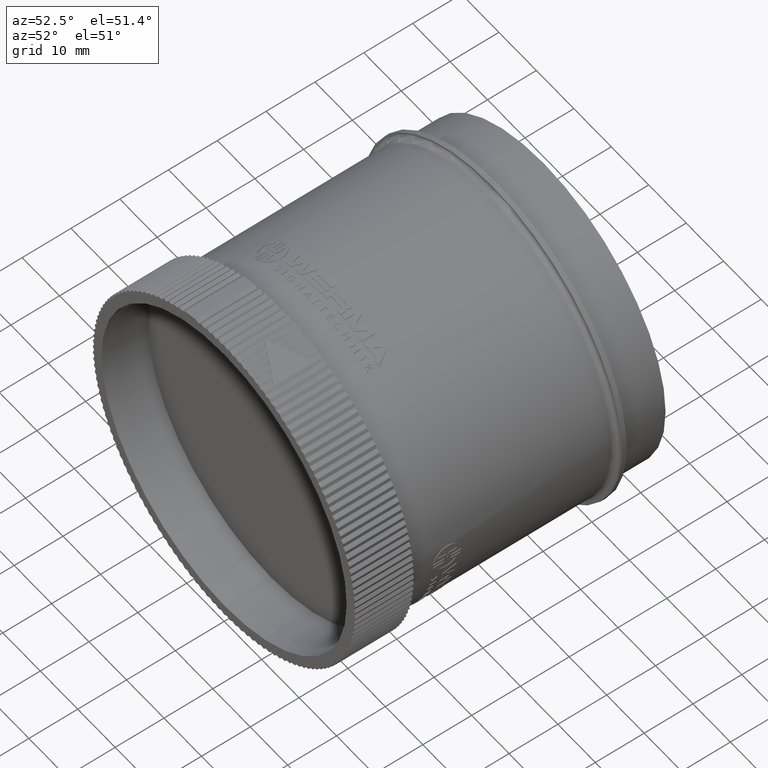
[diagram: clean part render]
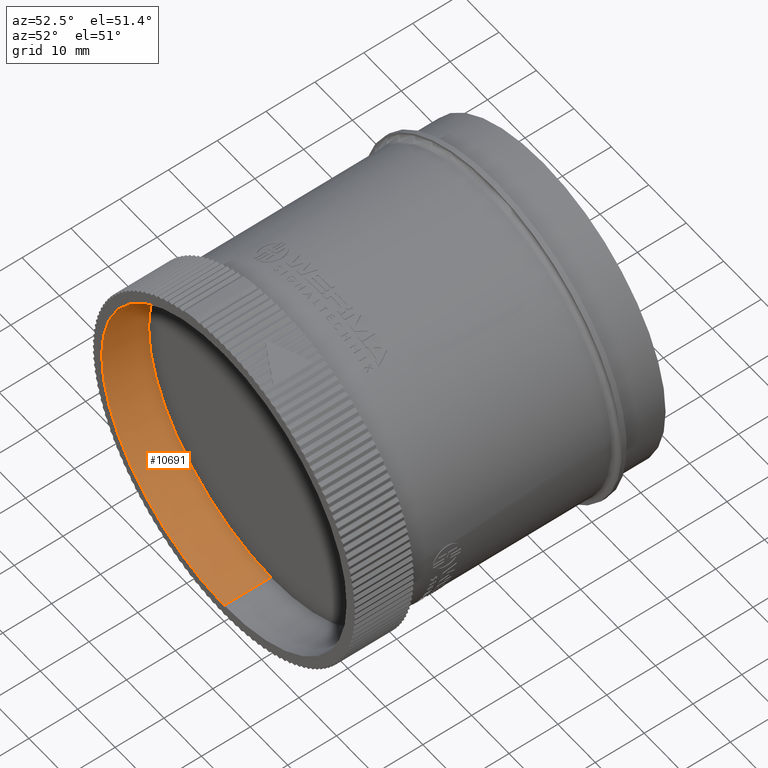
[diagram: same view with one face highlighted and labeled with its STEP entity id]
A machine part, auxiliary view. The second image highlights one B-rep face of the part: STEP entity #10691.
In plain terms, the highlighted cylindrical surface (partial cylindrical patch) has radius 32.7 mm, axis along (0, -1, 0).
Its self-contained STEP definition (entity closure, byte-faithful):
#894 = EDGE_CURVE ( 'NONE', #8345, #4081, #29077, .T. ) ;
#1953 = DIRECTION ( 'NONE',  ( 0.0000000000000000000, -1.000000000000000000, 0.0000000000000000000 ) ) ;
#2765 = DIRECTION ( 'NONE',  ( -0.0000000000000000000, 1.000000000000000000, -0.0000000000000000000 ) ) ;
#2831 = DIRECTION ( 'NONE',  ( 0.0000000000000000000, 0.0000000000000000000, -1.000000000000000000 ) ) ;
#3206 = CIRCLE ( 'NONE', #4306, 1.287401574803150000 ) ;
#4081 = VERTEX_POINT ( 'NONE', #6145 ) ;
#4306 = AXIS2_PLACEMENT_3D ( 'NONE', #26001, #2765, #29931 ) ;
#5300 = VERTEX_POINT ( 'NONE', #9667 ) ;
#6145 = CARTESIAN_POINT ( 'NONE',  ( 1.576612217799939400E-016, 0.0000000000000000000, 1.287401574803150000 ) ) ;
#6710 = DIRECTION ( 'NONE',  ( 0.0000000000000000000, -1.000000000000000000, 0.0000000000000000000 ) ) ;
#7993 = EDGE_CURVE ( 'NONE', #8917, #5300, #50320, .T. ) ;
#8186 = CYLINDRICAL_SURFACE ( 'NONE', #34273, 1.287401574803150000 ) ;
#8345 = VERTEX_POINT ( 'NONE', #44946 ) ;
#8917 = VERTEX_POINT ( 'NONE', #36726 ) ;
#9667 = CARTESIAN_POINT ( 'NONE',  ( 0.0000000000000000000, 0.0000000000000000000, -1.287401574803150000 ) ) ;
#10180 = VECTOR ( 'NONE', #25802, 39.37007874015748100 ) ;
#10269 = EDGE_CURVE ( 'NONE', #8345, #8917, #34396, .T. ) ;
#10691 = ADVANCED_FACE ( 'NONE', ( #19728 ), #8186, .F. ) ;
#11738 = AXIS2_PLACEMENT_3D ( 'NONE', #23215, #50376, #27160 ) ;
#16991 = ORIENTED_EDGE ( 'NONE', *, *, #7993, .F. ) ;
#19204 = EDGE_LOOP ( 'NONE', ( #49373, #45071, #42035, #16991 ) ) ;
#19728 = FACE_OUTER_BOUND ( 'NONE', #19204, .T. ) ;
#21286 = CARTESIAN_POINT ( 'NONE',  ( 1.576612217799939400E-016, 0.2364173228346457800, 1.287401574803150000 ) ) ;
#21874 = CARTESIAN_POINT ( 'NONE',  ( 0.0000000000000000000, 0.2364173228346457800, -1.287401574803150000 ) ) ;
#23215 = CARTESIAN_POINT ( 'NONE',  ( 0.0000000000000000000, 0.3779527559055118600, 0.0000000000000000000 ) ) ;
#25802 = DIRECTION ( 'NONE',  ( 0.0000000000000000000, -1.000000000000000000, 0.0000000000000000000 ) ) ;
#26001 = CARTESIAN_POINT ( 'NONE',  ( 0.0000000000000000000, 0.0000000000000000000, 0.0000000000000000000 ) ) ;
#27160 = DIRECTION ( 'NONE',  ( 0.0000000000000000000, 0.0000000000000000000, -1.000000000000000000 ) ) ;
#29077 = LINE ( 'NONE', #21286, #38207 ) ;
#29931 = DIRECTION ( 'NONE',  ( 0.0000000000000000000, 0.0000000000000000000, -1.000000000000000000 ) ) ;
#30002 = CARTESIAN_POINT ( 'NONE',  ( 0.0000000000000000000, 0.2364173228346457800, 0.0000000000000000000 ) ) ;
#34065 = EDGE_CURVE ( 'NONE', #5300, #4081, #3206, .T. ) ;
#34273 = AXIS2_PLACEMENT_3D ( 'NONE', #30002, #6710, #2831 ) ;
#34396 = CIRCLE ( 'NONE', #11738, 1.287401574803150000 ) ;
#36726 = CARTESIAN_POINT ( 'NONE',  ( 0.0000000000000000000, 0.3779527559055118600, -1.287401574803150000 ) ) ;
#38207 = VECTOR ( 'NONE', #1953, 39.37007874015748100 ) ;
#42035 = ORIENTED_EDGE ( 'NONE', *, *, #34065, .F. ) ;
#44946 = CARTESIAN_POINT ( 'NONE',  ( 1.576612217799939400E-016, 0.3779527559055118600, 1.287401574803150000 ) ) ;
#45071 = ORIENTED_EDGE ( 'NONE', *, *, #894, .T. ) ;
#49373 = ORIENTED_EDGE ( 'NONE', *, *, #10269, .F. ) ;
#50320 = LINE ( 'NONE', #21874, #10180 ) ;
#50376 = DIRECTION ( 'NONE',  ( 0.0000000000000000000, -1.000000000000000000, 0.0000000000000000000 ) ) ;